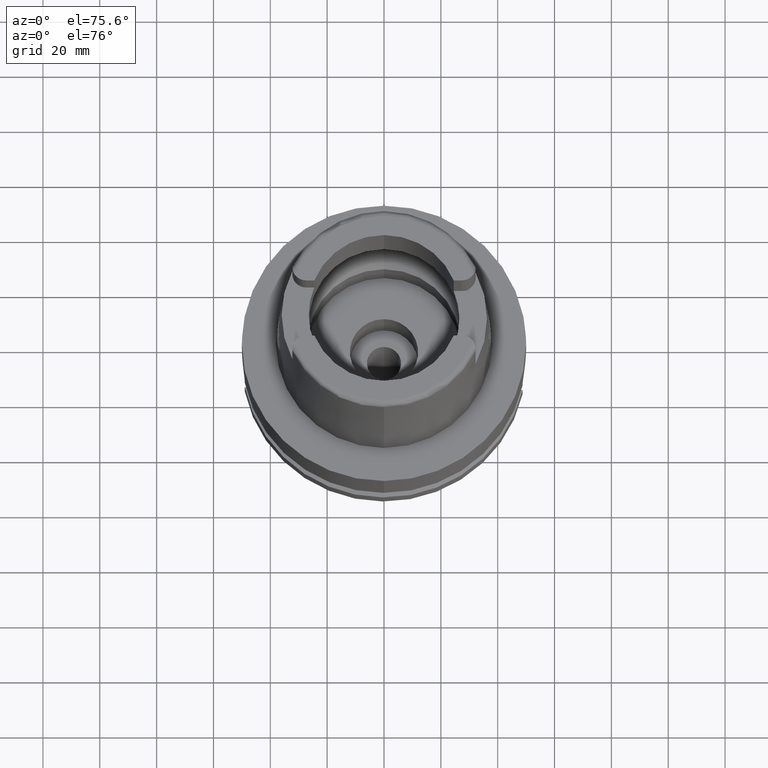
[diagram: clean part render]
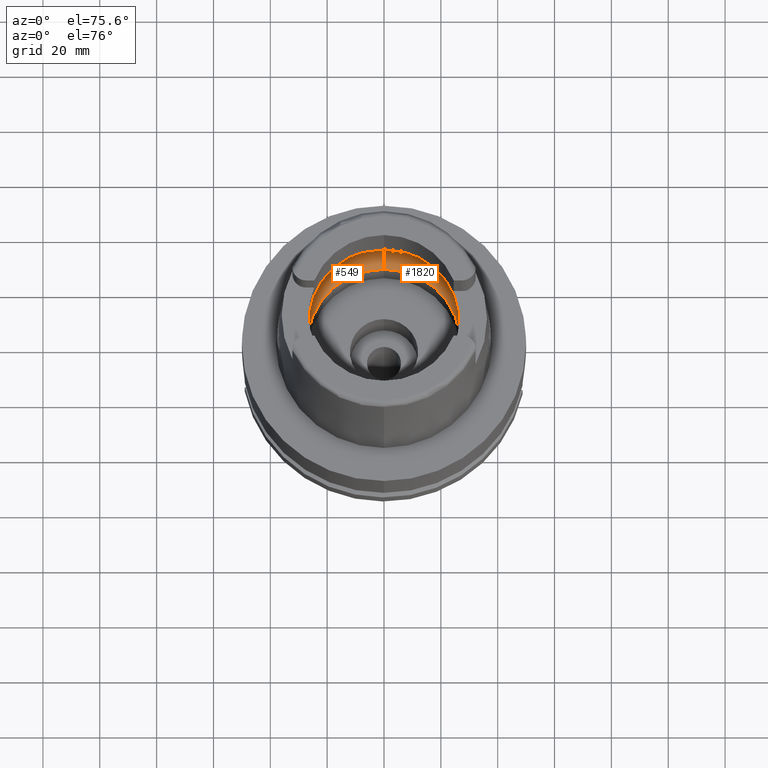
[diagram: same view with one multi-face feature highlighted, each face labeled with its STEP entity id]
A machine part, auxiliary view. The highlighted faces form ONE feature: a constant-radius fillet chain: 2 tangent blend faces with common blend radius 12 mm. The faces share edges in the B-rep.
Their STEP definitions:
[1] entity #1820 (Torus):
#106 = CARTESIAN_POINT ( 'NONE',  ( 0.0000000000000000000, 0.0000000000000000000, 9.496624327025999790 ) ) ;
#181 = CARTESIAN_POINT ( 'NONE',  ( 0.0000000000000000000, 26.89999999999999858, 0.04993178413046000380 ) ) ;
#305 = EDGE_CURVE ( 'NONE', #3435, #512, #4209, .T. ) ;
#339 = ORIENTED_EDGE ( 'NONE', *, *, #1141, .F. ) ;
#354 = CARTESIAN_POINT ( 'NONE',  ( 31.45843215351000310, 1.626125992769999806, 9.205189397203000112 ) ) ;
#512 = VERTEX_POINT ( 'NONE', #4328 ) ;
#513 = DIRECTION ( 'NONE',  ( 0.0000000000000000000, 0.0000000000000000000, -1.000000000000000000 ) ) ;
#535 = DIRECTION ( 'NONE',  ( 0.0000000000000000000, 1.000000000000000000, 0.0000000000000000000 ) ) ;
#655 = CARTESIAN_POINT ( 'NONE',  ( 31.42817542026000410, -2.140654635826999996, 9.388263020288000860 ) ) ;
#762 = TOROIDAL_SURFACE ( 'NONE', #3917, 19.50000000000000000, 12.00000000000000000 ) ;
#809 = CARTESIAN_POINT ( 'NONE',  ( 0.0000000000000000000, 0.0000000000000000000, 0.04993178413046000380 ) ) ;
#870 = DIRECTION ( 'NONE',  ( 0.0000000000000000000, -1.000000000000000000, 0.0000000000000000000 ) ) ;
#958 = AXIS2_PLACEMENT_3D ( 'NONE', #106, #1012, #2722 ) ;
#1012 = DIRECTION ( 'NONE',  ( 0.0000000000000000000, 0.0000000000000000000, -1.000000000000000000 ) ) ;
#1089 = CARTESIAN_POINT ( 'NONE',  ( 0.0000000000000000000, -31.50000000000000000, 9.496624327025999790 ) ) ;
#1099 = CARTESIAN_POINT ( 'NONE',  ( 0.0000000000000000000, -26.89999999999999858, 0.04993178413046000380 ) ) ;
#1141 = EDGE_CURVE ( 'NONE', #3296, #2640, #3723, .T. ) ;
#1537 = CIRCLE ( 'NONE', #5513, 26.89999999999999858 ) ;
#1563 = CARTESIAN_POINT ( 'NONE',  ( 31.48971910754000447, 0.0000000000000000000, 9.000000000000000000 ) ) ;
#1574 = AXIS2_PLACEMENT_3D ( 'NONE', #2996, #2524, #4269 ) ;
#1599 = CARTESIAN_POINT ( 'NONE',  ( 31.40918884336000616, 2.390158196043999705, 9.496624327025999790 ) ) ;
#1737 = CARTESIAN_POINT ( 'NONE',  ( 31.40918884336000616, 2.390158196043999705, 9.496624327025999790 ) ) ;
#1743 = ORIENTED_EDGE ( 'NONE', *, *, #4713, .F. ) ;
#1820 = ADVANCED_FACE ( 'NONE', ( #4344 ), #762, .F. ) ;
#1836 = AXIS2_PLACEMENT_3D ( 'NONE', #2316, #513, #535 ) ;
#1876 = CARTESIAN_POINT ( 'NONE',  ( 31.48971910754000447, 0.0000000000000000000, 9.000000000000000000 ) ) ;
#2037 = AXIS2_PLACEMENT_3D ( 'NONE', #2854, #4595, #3219 ) ;
#2203 = CARTESIAN_POINT ( 'NONE',  ( 0.0000000000000000000, 0.0000000000000000000, 9.496624327025999790 ) ) ;
#2210 = EDGE_CURVE ( 'NONE', #512, #5168, #2656, .T. ) ;
#2214 = CIRCLE ( 'NONE', #1574, 11.99999999999999822 ) ;
#2316 = CARTESIAN_POINT ( 'NONE',  ( 0.0000000000000000000, 0.0000000000000000000, 9.496624327025999790 ) ) ;
#2461 = CARTESIAN_POINT ( 'NONE',  ( 31.48971910754000447, 0.2740808193429000172, 9.000000000000000000 ) ) ;
#2478 = EDGE_CURVE ( 'NONE', #5396, #5168, #2214, .T. ) ;
#2496 = CARTESIAN_POINT ( 'NONE',  ( 31.42817530553000083, 2.140656143518000487, 9.388263675090000149 ) ) ;
#2524 = DIRECTION ( 'NONE',  ( -1.000000000000000000, 0.0000000000000000000, 0.0000000000000000000 ) ) ;
#2640 = VERTEX_POINT ( 'NONE', #1737 ) ;
#2656 = CIRCLE ( 'NONE', #958, 31.50000000000001421 ) ;
#2722 = DIRECTION ( 'NONE',  ( 0.9971171061384286327, -0.07587803796966216541, 0.0000000000000000000 ) ) ;
#2854 = CARTESIAN_POINT ( 'NONE',  ( 0.0000000000000000000, 19.50000000000000000, 9.496624327025999790 ) ) ;
#2859 = B_SPLINE_CURVE_WITH_KNOTS ( 'NONE', 3,
 ( #1599, #2496, #354, #5031, #2461, #1563 ),
 .UNSPECIFIED., .F., .F.,
 ( 4, 1, 1, 4 ),
 ( 0.0000000000000000000, 0.3333333333333000081, 0.6666666666667000474, 1.000000000000000000 ),
 .UNSPECIFIED. ) ;
#2996 = CARTESIAN_POINT ( 'NONE',  ( 0.0000000000000000000, -19.50000000000000000, 9.496624327025999790 ) ) ;
#3122 = EDGE_CURVE ( 'NONE', #2640, #3435, #2859, .T. ) ;
#3219 = DIRECTION ( 'NONE',  ( 0.0000000000000000000, 0.6166666666667049990, -0.7872243785746061429 ) ) ;
#3296 = VERTEX_POINT ( 'NONE', #5583 ) ;
#3406 = EDGE_CURVE ( 'NONE', #4270, #3296, #5462, .T. ) ;
#3435 = VERTEX_POINT ( 'NONE', #5458 ) ;
#3591 = CARTESIAN_POINT ( 'NONE',  ( 31.40918884336000616, -2.390158196043999705, 9.496624327025999790 ) ) ;
#3723 = CIRCLE ( 'NONE', #1836, 31.50000000000000000 ) ;
#3727 = ORIENTED_EDGE ( 'NONE', *, *, #2210, .F. ) ;
#3908 = EDGE_LOOP ( 'NONE', ( #5120, #339, #4854, #1743, #4135, #3727, #4235 ) ) ;
#3917 = AXIS2_PLACEMENT_3D ( 'NONE', #2203, #3918, #3945 ) ;
#3918 = DIRECTION ( 'NONE',  ( 0.0000000000000000000, 0.0000000000000000000, 1.000000000000000000 ) ) ;
#3945 = DIRECTION ( 'NONE',  ( 0.0000000000000000000, 1.000000000000000000, 0.0000000000000000000 ) ) ;
#4038 = CARTESIAN_POINT ( 'NONE',  ( 31.45843229728999901, -1.626122314408000147, 9.205188491873000700 ) ) ;
#4135 = ORIENTED_EDGE ( 'NONE', *, *, #2478, .T. ) ;
#4209 = B_SPLINE_CURVE_WITH_KNOTS ( 'NONE', 3,
 ( #1876, #4881, #4965, #4038, #655, #3591 ),
 .UNSPECIFIED., .F., .F.,
 ( 4, 1, 1, 4 ),
 ( 0.0000000000000000000, 0.3333333333333000081, 0.6666666666667000474, 1.000000000000000000 ),
 .UNSPECIFIED. ) ;
#4235 = ORIENTED_EDGE ( 'NONE', *, *, #305, .F. ) ;
#4269 = DIRECTION ( 'NONE',  ( 0.0000000000000000000, -0.6166666666667049990, -0.7872243785746061429 ) ) ;
#4270 = VERTEX_POINT ( 'NONE', #181 ) ;
#4328 = CARTESIAN_POINT ( 'NONE',  ( 31.40918884336000616, -2.390158196043999705, 9.496624327025999790 ) ) ;
#4344 = FACE_OUTER_BOUND ( 'NONE', #3908, .T. ) ;
#4595 = DIRECTION ( 'NONE',  ( 1.000000000000000000, 0.0000000000000000000, 0.0000000000000000000 ) ) ;
#4666 = DIRECTION ( 'NONE',  ( 0.0000000000000000000, 0.0000000000000000000, 1.000000000000000000 ) ) ;
#4713 = EDGE_CURVE ( 'NONE', #5396, #4270, #1537, .T. ) ;
#4854 = ORIENTED_EDGE ( 'NONE', *, *, #3406, .F. ) ;
#4881 = CARTESIAN_POINT ( 'NONE',  ( 31.48971910754000447, -0.2740816369240999806, 9.000000000000000000 ) ) ;
#4965 = CARTESIAN_POINT ( 'NONE',  ( 31.48416657243999950, -0.8216274657312000462, 9.037606582851999804 ) ) ;
#5031 = CARTESIAN_POINT ( 'NONE',  ( 31.48416663622000300, 0.8216256622719000369, 9.037606172252001357 ) ) ;
#5120 = ORIENTED_EDGE ( 'NONE', *, *, #3122, .F. ) ;
#5168 = VERTEX_POINT ( 'NONE', #1089 ) ;
#5396 = VERTEX_POINT ( 'NONE', #1099 ) ;
#5458 = CARTESIAN_POINT ( 'NONE',  ( 31.48971910754000447, 0.0000000000000000000, 9.000000000000000000 ) ) ;
#5462 = CIRCLE ( 'NONE', #2037, 11.99999999999999822 ) ;
#5513 = AXIS2_PLACEMENT_3D ( 'NONE', #809, #4666, #870 ) ;
#5583 = CARTESIAN_POINT ( 'NONE',  ( 0.0000000000000000000, 31.50000000000000000, 9.496624327025999790 ) ) ;
[2] entity #549 (Torus):
#22 = ORIENTED_EDGE ( 'NONE', *, *, #4779, .F. ) ;
#181 = CARTESIAN_POINT ( 'NONE',  ( 0.0000000000000000000, 26.89999999999999858, 0.04993178413046000380 ) ) ;
#414 = EDGE_CURVE ( 'NONE', #4451, #3296, #511, .T. ) ;
#443 = ORIENTED_EDGE ( 'NONE', *, *, #414, .F. ) ;
#495 = DIRECTION ( 'NONE',  ( 0.0000000000000000000, 0.0000000000000000000, 1.000000000000000000 ) ) ;
#511 = CIRCLE ( 'NONE', #3113, 31.50000000000001421 ) ;
#549 = ADVANCED_FACE ( 'NONE', ( #2896 ), #2759, .F. ) ;
#703 = ORIENTED_EDGE ( 'NONE', *, *, #3406, .T. ) ;
#783 = AXIS2_PLACEMENT_3D ( 'NONE', #5101, #495, #1370 ) ;
#907 = CARTESIAN_POINT ( 'NONE',  ( -31.48416659375000037, -0.8216262390445000507, 9.037606438216000626 ) ) ;
#917 = AXIS2_PLACEMENT_3D ( 'NONE', #5065, #4636, #2294 ) ;
#1089 = CARTESIAN_POINT ( 'NONE',  ( 0.0000000000000000000, -31.50000000000000000, 9.496624327025999790 ) ) ;
#1099 = CARTESIAN_POINT ( 'NONE',  ( 0.0000000000000000000, -26.89999999999999858, 0.04993178413046000380 ) ) ;
#1176 = CARTESIAN_POINT ( 'NONE',  ( -31.48971910754000447, 0.2740813517951999900, 9.000000000000000000 ) ) ;
#1194 = DIRECTION ( 'NONE',  ( -0.9971171061384286327, 0.07587803796966216541, 0.0000000000000000000 ) ) ;
#1353 = VERTEX_POINT ( 'NONE', #3721 ) ;
#1370 = DIRECTION ( 'NONE',  ( 0.0000000000000000000, 1.000000000000000000, 0.0000000000000000000 ) ) ;
#1574 = AXIS2_PLACEMENT_3D ( 'NONE', #2996, #2524, #4269 ) ;
#1624 = CARTESIAN_POINT ( 'NONE',  ( -31.42817526838999953, 2.140656631636999929, 9.388263887083001080 ) ) ;
#1658 = B_SPLINE_CURVE_WITH_KNOTS ( 'NONE', 3,
 ( #5032, #1176, #3738, #3335, #1624, #2106 ),
 .UNSPECIFIED., .F., .F.,
 ( 4, 1, 1, 4 ),
 ( 0.0000000000000000000, 0.3333333333333000081, 0.6666666666667000474, 1.000000000000000000 ),
 .UNSPECIFIED. ) ;
#1915 = CARTESIAN_POINT ( 'NONE',  ( -31.40918884336000616, 2.390158196043999705, 9.496624327025999790 ) ) ;
#1992 = ORIENTED_EDGE ( 'NONE', *, *, #5060, .F. ) ;
#2037 = AXIS2_PLACEMENT_3D ( 'NONE', #2854, #4595, #3219 ) ;
#2056 = VERTEX_POINT ( 'NONE', #2591 ) ;
#2106 = CARTESIAN_POINT ( 'NONE',  ( -31.40918884336000616, 2.390158196043999705, 9.496624327025999790 ) ) ;
#2146 = CARTESIAN_POINT ( 'NONE',  ( -31.48971910754000447, 0.0000000000000000000, 9.000000000000000000 ) ) ;
#2167 = CARTESIAN_POINT ( 'NONE',  ( -31.45843235400999660, -1.626121130666000170, 9.205188134635001518 ) ) ;
#2214 = CIRCLE ( 'NONE', #1574, 11.99999999999999822 ) ;
#2294 = DIRECTION ( 'NONE',  ( 0.0000000000000000000, -1.000000000000000000, 0.0000000000000000000 ) ) ;
#2454 = CARTESIAN_POINT ( 'NONE',  ( 0.0000000000000000000, 0.0000000000000000000, 9.496624327025999790 ) ) ;
#2478 = EDGE_CURVE ( 'NONE', #5396, #5168, #2214, .T. ) ;
#2487 = EDGE_CURVE ( 'NONE', #1353, #4451, #1658, .T. ) ;
#2524 = DIRECTION ( 'NONE',  ( -1.000000000000000000, 0.0000000000000000000, 0.0000000000000000000 ) ) ;
#2591 = CARTESIAN_POINT ( 'NONE',  ( -31.40918884336000616, -2.390158196043999705, 9.496624327025999790 ) ) ;
#2742 = DIRECTION ( 'NONE',  ( 0.0000000000000000000, 1.000000000000000000, 0.0000000000000000000 ) ) ;
#2759 = TOROIDAL_SURFACE ( 'NONE', #783, 19.50000000000000000, 12.00000000000000000 ) ;
#2771 = CARTESIAN_POINT ( 'NONE',  ( 0.0000000000000000000, 0.0000000000000000000, 0.04993178413046000380 ) ) ;
#2854 = CARTESIAN_POINT ( 'NONE',  ( 0.0000000000000000000, 19.50000000000000000, 9.496624327025999790 ) ) ;
#2896 = FACE_OUTER_BOUND ( 'NONE', #3704, .T. ) ;
#2914 = ORIENTED_EDGE ( 'NONE', *, *, #2487, .F. ) ;
#2915 = CIRCLE ( 'NONE', #3267, 26.89999999999999858 ) ;
#2989 = B_SPLINE_CURVE_WITH_KNOTS ( 'NONE', 3,
 ( #3516, #3086, #2167, #907, #5567, #2146 ),
 .UNSPECIFIED., .F., .F.,
 ( 4, 1, 1, 4 ),
 ( 0.0000000000000000000, 0.3333333333333000081, 0.6666666666667000474, 1.000000000000000000 ),
 .UNSPECIFIED. ) ;
#2996 = CARTESIAN_POINT ( 'NONE',  ( 0.0000000000000000000, -19.50000000000000000, 9.496624327025999790 ) ) ;
#3086 = CARTESIAN_POINT ( 'NONE',  ( -31.42817545703999826, -2.140654152532999621, 9.388262810390001434 ) ) ;
#3113 = AXIS2_PLACEMENT_3D ( 'NONE', #2454, #5025, #1194 ) ;
#3219 = DIRECTION ( 'NONE',  ( 0.0000000000000000000, 0.6166666666667049990, -0.7872243785746061429 ) ) ;
#3249 = DIRECTION ( 'NONE',  ( 0.0000000000000000000, 0.0000000000000000000, 1.000000000000000000 ) ) ;
#3267 = AXIS2_PLACEMENT_3D ( 'NONE', #2771, #3249, #2742 ) ;
#3296 = VERTEX_POINT ( 'NONE', #5583 ) ;
#3330 = CIRCLE ( 'NONE', #917, 31.50000000000000000 ) ;
#3335 = CARTESIAN_POINT ( 'NONE',  ( -31.45843209623000547, 1.626127188330999784, 9.205189758010000389 ) ) ;
#3406 = EDGE_CURVE ( 'NONE', #4270, #3296, #5462, .T. ) ;
#3516 = CARTESIAN_POINT ( 'NONE',  ( -31.40918884336000616, -2.390158196043999705, 9.496624327025999790 ) ) ;
#3652 = ORIENTED_EDGE ( 'NONE', *, *, #2478, .F. ) ;
#3704 = EDGE_LOOP ( 'NONE', ( #22, #3652, #1992, #703, #443, #2914, #4376 ) ) ;
#3721 = CARTESIAN_POINT ( 'NONE',  ( -31.48971910754000447, 0.0000000000000000000, 9.000000000000000000 ) ) ;
#3738 = CARTESIAN_POINT ( 'NONE',  ( -31.48416661469000033, 0.8216269012393999649, 9.037606318336999678 ) ) ;
#4269 = DIRECTION ( 'NONE',  ( 0.0000000000000000000, -0.6166666666667049990, -0.7872243785746061429 ) ) ;
#4270 = VERTEX_POINT ( 'NONE', #181 ) ;
#4309 = EDGE_CURVE ( 'NONE', #2056, #1353, #2989, .T. ) ;
#4376 = ORIENTED_EDGE ( 'NONE', *, *, #4309, .F. ) ;
#4451 = VERTEX_POINT ( 'NONE', #1915 ) ;
#4595 = DIRECTION ( 'NONE',  ( 1.000000000000000000, 0.0000000000000000000, 0.0000000000000000000 ) ) ;
#4636 = DIRECTION ( 'NONE',  ( 0.0000000000000000000, 0.0000000000000000000, -1.000000000000000000 ) ) ;
#4779 = EDGE_CURVE ( 'NONE', #5168, #2056, #3330, .T. ) ;
#5025 = DIRECTION ( 'NONE',  ( 0.0000000000000000000, 0.0000000000000000000, -1.000000000000000000 ) ) ;
#5032 = CARTESIAN_POINT ( 'NONE',  ( -31.48971910754000447, 0.0000000000000000000, 9.000000000000000000 ) ) ;
#5060 = EDGE_CURVE ( 'NONE', #4270, #5396, #2915, .T. ) ;
#5065 = CARTESIAN_POINT ( 'NONE',  ( 0.0000000000000000000, 0.0000000000000000000, 9.496624327025999790 ) ) ;
#5101 = CARTESIAN_POINT ( 'NONE',  ( 0.0000000000000000000, 0.0000000000000000000, 9.496624327025999790 ) ) ;
#5168 = VERTEX_POINT ( 'NONE', #1089 ) ;
#5396 = VERTEX_POINT ( 'NONE', #1099 ) ;
#5462 = CIRCLE ( 'NONE', #2037, 11.99999999999999822 ) ;
#5567 = CARTESIAN_POINT ( 'NONE',  ( -31.48971910754000447, -0.2740811097498000448, 9.000000000000000000 ) ) ;
#5583 = CARTESIAN_POINT ( 'NONE',  ( 0.0000000000000000000, 31.50000000000000000, 9.496624327025999790 ) ) ;